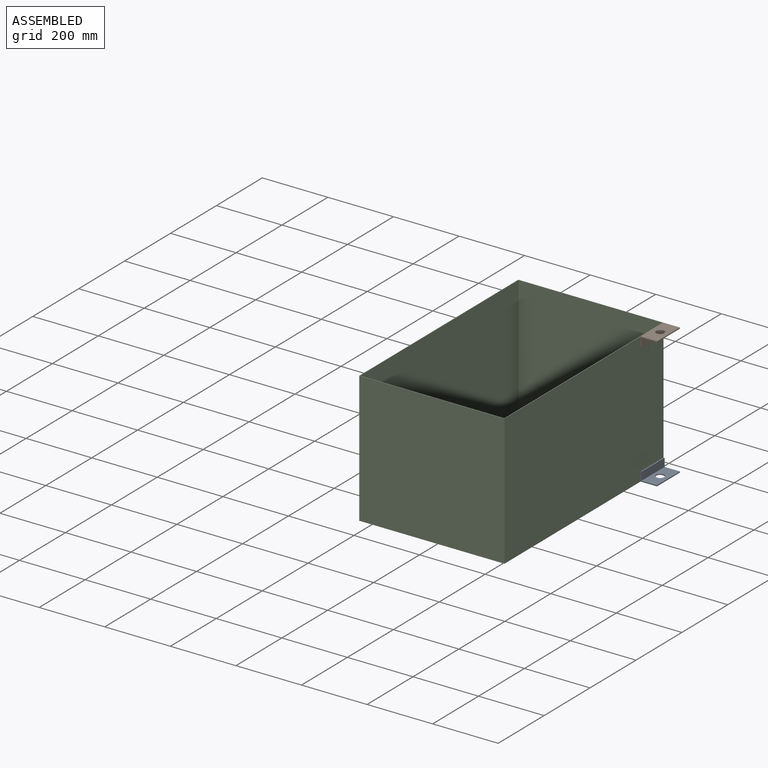
[diagram: assembled view]
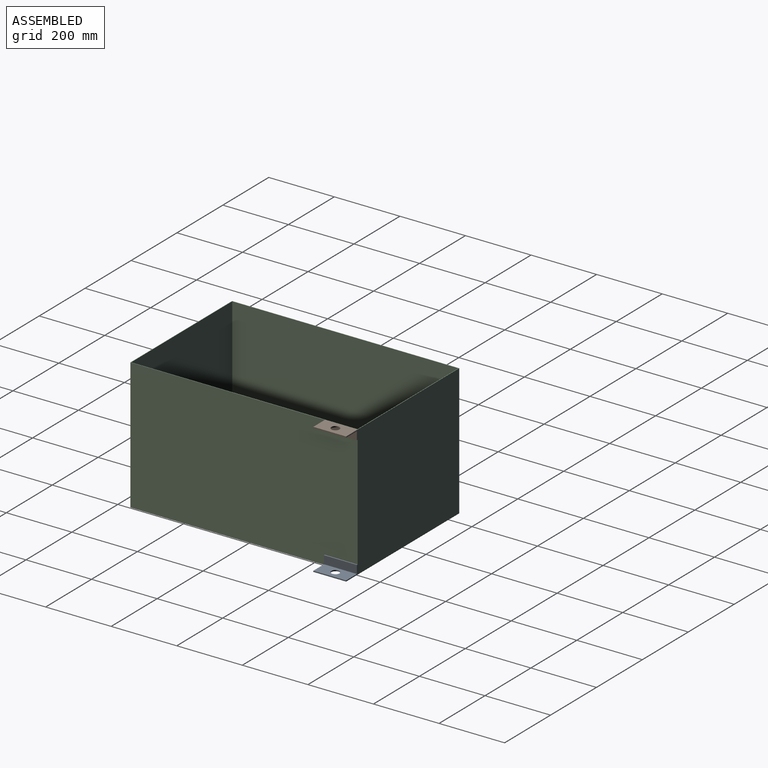
[diagram: assembled view, second angle]
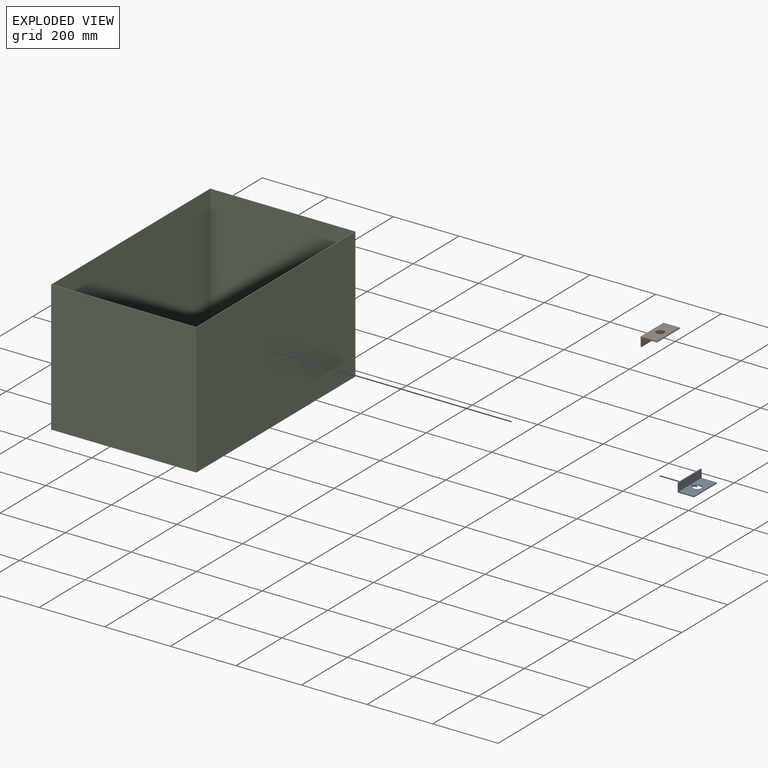
[diagram: exploded view]
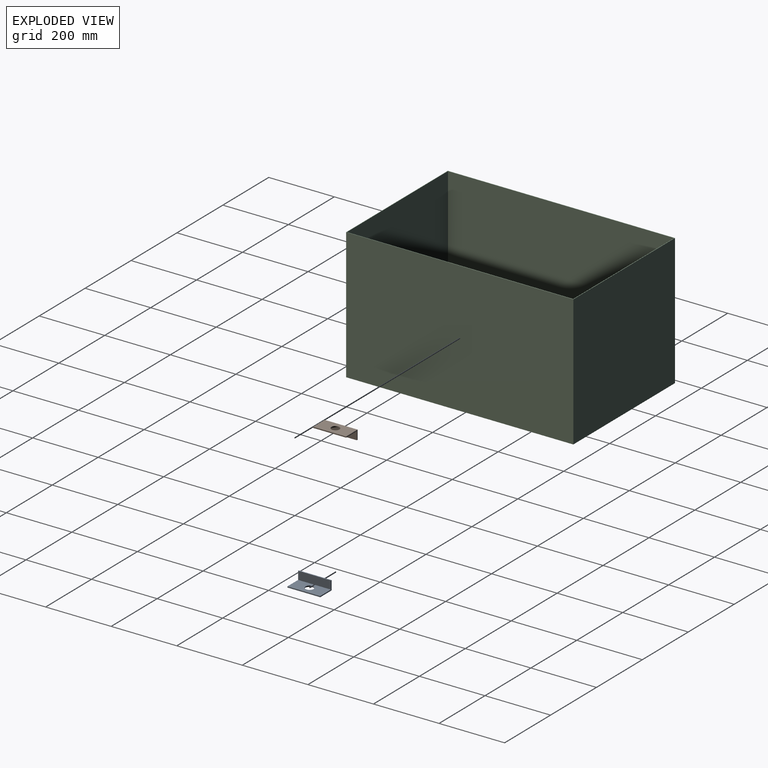
[diagram: exploded view, second angle]
ASSEMBLY  parts=3 mates=2
PART A: 9 faces, bbox 50x100x28.2 mm
  f0: plane 50x28.2mm, normal (0,-1,0), area 240mm2, adj f1,f3,f4,f5,f6,f7
  f1: plane 100x3.2mm, normal (0,0,1), area 320mm2, adj f0,f2,f3,f4
  f2: plane 50x28.2mm, normal (0,1,0), area 240mm2, adj f1,f3,f4,f5,f6,f7
  f3: plane 100x25mm, normal (1,0,0), area 2500mm2, adj f0,f1,f2,f5
  f4: plane 100x28.2mm, normal (-1,0,0), area 2820mm2, adj f0,f1,f2,f7
  f5: plane 100x46.8mm, normal (0,0,1), area 4189.1mm2, adj f0,f2,f3,f6,f8
  f6: plane 100x3.2mm, normal (1,0,0), area 320mm2, adj f0,f2,f5,f7
  f7: plane 100x50mm, normal (0,0,-1), area 4509.1mm2, adj f0,f2,f4,f6,f8
  f8: cylinder r=12.5mm len=25mm, axis (0,0,-1), area 251.3mm2, adj f5,f7
PART B: 9 faces, bbox 50x100x28.2 mm
  f0: plane 50x28.2mm, normal (0,-1,0), area 240mm2, adj f1,f3,f4,f5,f6,f7
  f1: plane 100x3.2mm, normal (0,0,-1), area 320mm2, adj f0,f2,f3,f4
  f2: plane 50x28.2mm, normal (0,1,0), area 240mm2, adj f1,f3,f4,f5,f6,f7
  f3: plane 100x25mm, normal (1,0,0), area 2500mm2, adj f0,f1,f2,f5
  f4: plane 100x28.2mm, normal (-1,0,0), area 2820mm2, adj f0,f1,f2,f7
  f5: plane 100x46.8mm, normal (0,0,-1), area 4189.1mm2, adj f0,f2,f3,f6,f8
  f6: plane 100x3.2mm, normal (1,0,0), area 320mm2, adj f0,f2,f5,f7
  f7: plane 100x50mm, normal (0,0,1), area 4509.1mm2, adj f0,f2,f4,f6,f8
  f8: cylinder r=12.5mm len=25mm, axis (0,0,1), area 251.3mm2, adj f5,f7
PART C: 10 faces, bbox 443x693x400 mm
  f0: plane 693x443mm, normal (0,0,1), area 3399mm2, adj f2,f3,f4,f5,f6,f7,f8,f9
  f1: plane 693x443mm, normal (0,0,-1), area 3399mm2, adj f2,f3,f4,f5,f6,f7,f8,f9
  f2: plane 443x400mm, normal (0,-1,0), area 177200mm2, adj f0,f1,f3,f5
  f3: plane 693x400mm, normal (1,0,0), area 277200mm2, adj f0,f1,f2,f4
  f4: plane 443x400mm, normal (0,1,0), area 177200mm2, adj f0,f1,f3,f5
  f5: plane 693x400mm, normal (-1,0,0), area 277200mm2, adj f0,f1,f2,f4
  f6: plane 440x400mm, normal (0,1,0), area 176000mm2, adj f0,f1,f7,f9
  f7: plane 690x400mm, normal (-1,0,0), area 276000mm2, adj f0,f1,f6,f8
  f8: plane 440x400mm, normal (0,-1,0), area 176000mm2, adj f0,f1,f7,f9
  f9: plane 690x400mm, normal (1,0,0), area 276000mm2, adj f0,f1,f6,f8
PLACE A t=(221.5,246.5,371.2)mm
PLACE B t=(221.5,246.5,371.8)mm
PLACE C at identity fixed
MATE fastened C.f3 <-> A.f4  axis (1,0,0) through (221.5,346.5,0)mm
MATE fastened B.f4 <-> C.f3  axis (-1,0,0) through (221.5,346.5,400)mm
